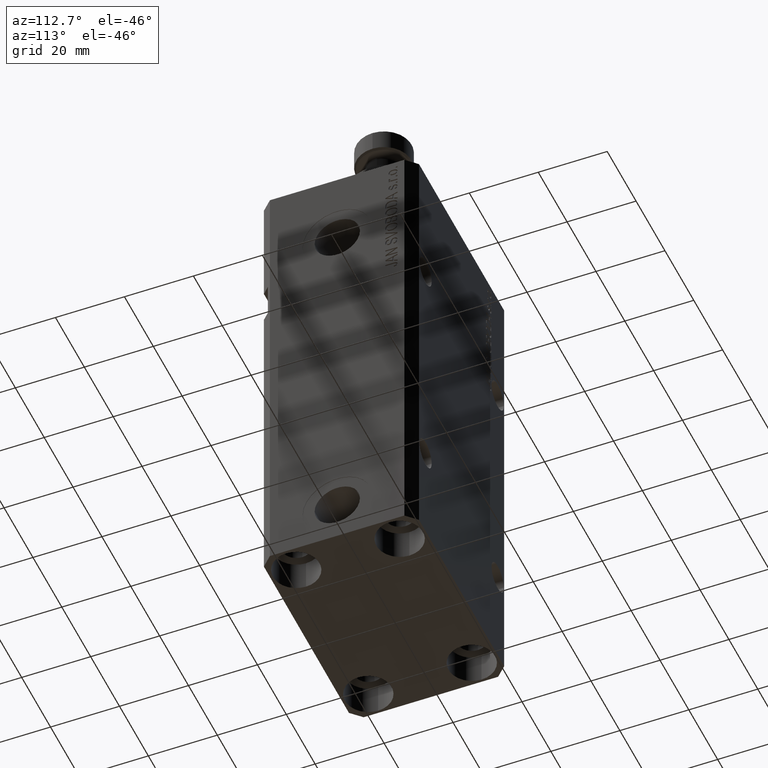
[diagram: clean part render]
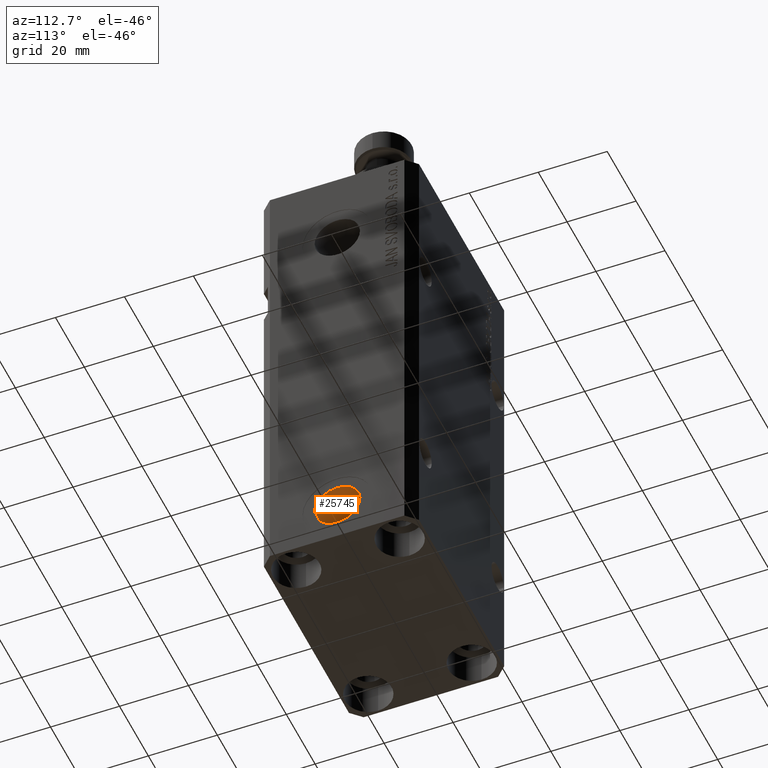
[diagram: same view with one face highlighted and labeled with its STEP entity id]
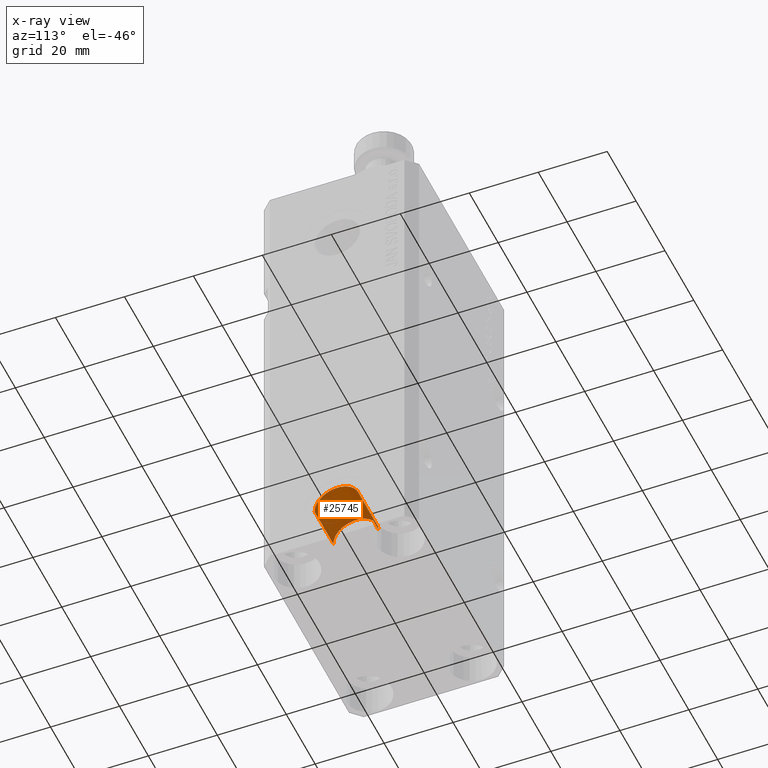
[diagram: x-ray of the same camera — body ghosted, the highlighted face saturated]
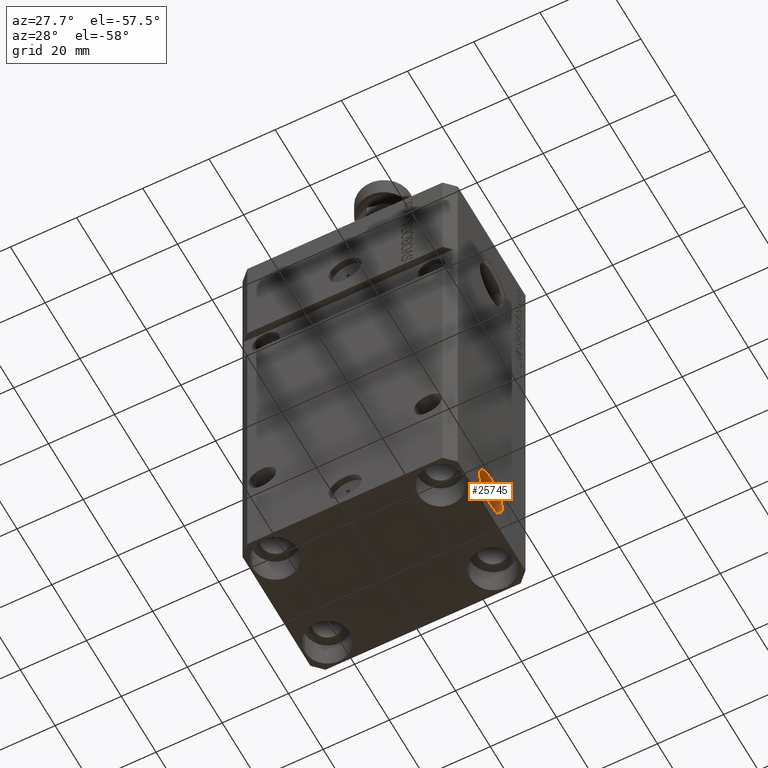
[diagram: same view with one face highlighted and labeled with its STEP entity id]
A machine part, auxiliary view. The second image highlights one B-rep face of the part: STEP entity #25745.
The next image is the same camera in x-ray: the body ghosted, the highlighted face saturated — about 0% of this face is hidden behind the body in this view.
A second angle (auxiliary view) of the same face is appended — the face is thin or edge-on in the first view.
In plain terms, the highlighted cylindrical surface (edge-blend (fillet) strip) has radius 6.58 mm, axis along (1, -0, 0).
Its self-contained STEP definition (entity closure, byte-faithful):
#1912 = ORIENTED_EDGE ( 'NONE', *, *, #36412, .T. ) ;
#2324 = DIRECTION ( 'NONE',  ( 1.000000000000000000, -1.334402673828349292E-14, -0.000000000000000000 ) ) ;
#3650 = DIRECTION ( 'NONE',  ( 1.318178933113078171E-14, 1.000000000000000000, 0.000000000000000000 ) ) ;
#4369 = CARTESIAN_POINT ( 'NONE',  ( 19.39999999999677271, -2.588741187226567343E-13, -125.0000000000000000 ) ) ;
#4563 = CARTESIAN_POINT ( 'NONE',  ( 19.39999999999668745, -6.580000000000244320, -125.0000000000000000 ) ) ;
#6340 = DIRECTION ( 'NONE',  ( 1.370906090437601279E-14, 1.000000000000000000, 0.000000000000000000 ) ) ;
#7207 = CYLINDRICAL_SURFACE ( 'NONE', #20718, 6.579999999999985860 ) ;
#7260 = EDGE_CURVE ( 'NONE', #16065, #7628, #34694, .T. ) ;
#7628 = VERTEX_POINT ( 'NONE', #39324 ) ;
#9773 = ORIENTED_EDGE ( 'NONE', *, *, #41095, .F. ) ;
#9992 = ORIENTED_EDGE ( 'NONE', *, *, #7260, .T. ) ;
#12007 = CIRCLE ( 'NONE', #22531, 6.579999999999985860 ) ;
#13249 = DIRECTION ( 'NONE',  ( 1.000000000000000000, -1.334402673828349292E-14, -0.000000000000000000 ) ) ;
#15234 = DIRECTION ( 'NONE',  ( 1.318178933113078171E-14, 1.000000000000000000, 0.000000000000000000 ) ) ;
#16065 = VERTEX_POINT ( 'NONE', #40262 ) ;
#17216 = DIRECTION ( 'NONE',  ( 1.000000000000000000, -1.334402673828349134E-14, 0.000000000000000000 ) ) ;
#18391 = VERTEX_POINT ( 'NONE', #25971 ) ;
#19582 = VECTOR ( 'NONE', #2324, 1000.000000000000000 ) ;
#20268 = LINE ( 'NONE', #34650, #19582 ) ;
#20718 = AXIS2_PLACEMENT_3D ( 'NONE', #4369, #22075, #15234 ) ;
#21971 = VECTOR ( 'NONE', #13249, 1000.000000000000000 ) ;
#22075 = DIRECTION ( 'NONE',  ( 1.000000000000000000, -1.334402673828349292E-14, -0.000000000000000000 ) ) ;
#22531 = AXIS2_PLACEMENT_3D ( 'NONE', #43048, #24675, #3650 ) ;
#24675 = DIRECTION ( 'NONE',  ( 1.000000000000000000, -1.334402673828349134E-14, 0.000000000000000000 ) ) ;
#25745 = ADVANCED_FACE ( 'NONE', ( #43307 ), #7207, .F. ) ;
#25971 = CARTESIAN_POINT ( 'NONE',  ( 32.39999999999668034, -6.580000000000417515, -125.0000000000000000 ) ) ;
#30709 = CARTESIAN_POINT ( 'NONE',  ( 19.39999999999686153, 6.579999999999727400, -125.0000000000000000 ) ) ;
#30934 = EDGE_LOOP ( 'NONE', ( #39646, #9773, #9992, #1912 ) ) ;
#34650 = CARTESIAN_POINT ( 'NONE',  ( 19.39999999999668745, -6.580000000000244320, -125.0000000000000000 ) ) ;
#34694 = LINE ( 'NONE', #30709, #21971 ) ;
#35206 = AXIS2_PLACEMENT_3D ( 'NONE', #45276, #17216, #6340 ) ;
#36412 = EDGE_CURVE ( 'NONE', #7628, #18391, #45745, .T. ) ;
#39324 = CARTESIAN_POINT ( 'NONE',  ( 32.39999999999686509, 6.579999999999554205, -125.0000000000000000 ) ) ;
#39646 = ORIENTED_EDGE ( 'NONE', *, *, #43151, .F. ) ;
#40262 = CARTESIAN_POINT ( 'NONE',  ( 19.39999999999686153, 6.579999999999727400, -125.0000000000000000 ) ) ;
#40500 = VERTEX_POINT ( 'NONE', #4563 ) ;
#41095 = EDGE_CURVE ( 'NONE', #16065, #40500, #12007, .T. ) ;
#43048 = CARTESIAN_POINT ( 'NONE',  ( 19.39999999999677271, -2.588741187226567343E-13, -125.0000000000000000 ) ) ;
#43151 = EDGE_CURVE ( 'NONE', #40500, #18391, #20268, .T. ) ;
#43307 = FACE_OUTER_BOUND ( 'NONE', #30934, .T. ) ;
#45276 = CARTESIAN_POINT ( 'NONE',  ( 32.39999999999677271, -4.323464663203420885E-13, -125.0000000000000000 ) ) ;
#45745 = CIRCLE ( 'NONE', #35206, 6.579999999999985860 ) ;